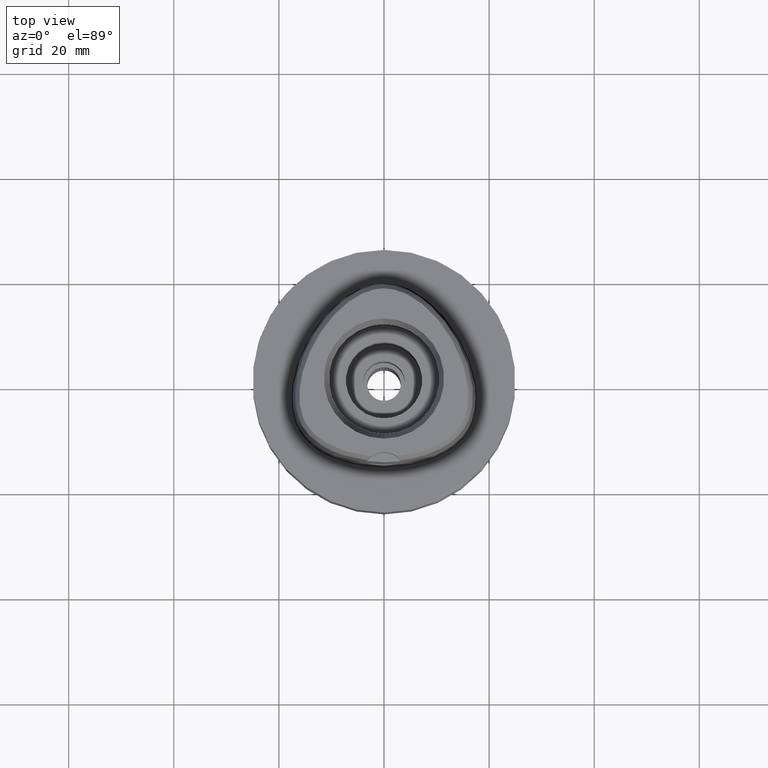
[diagram: clean part render]
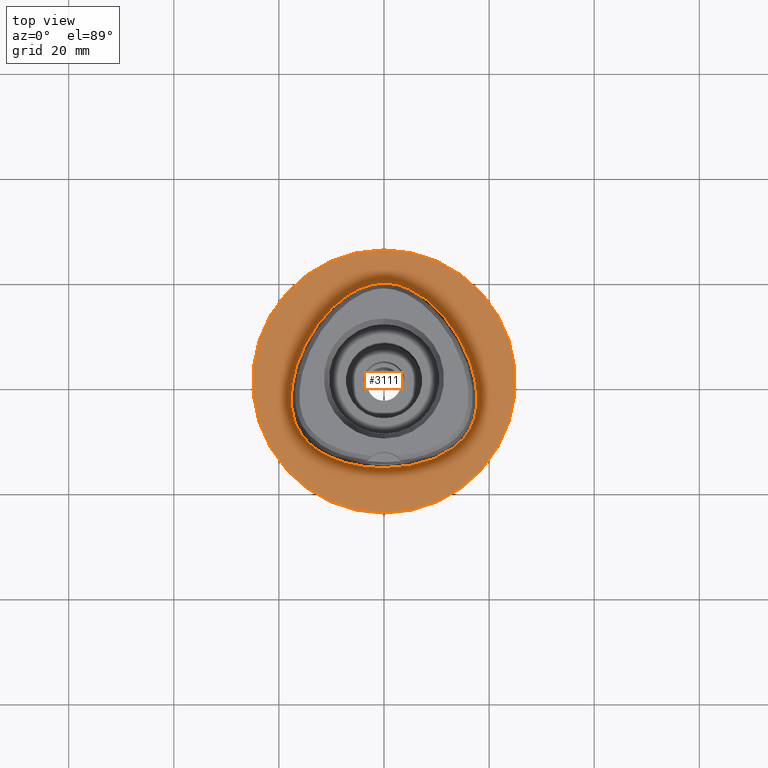
[diagram: same view with one face highlighted and labeled with its STEP entity id]
A machine part, top view. The second image highlights one B-rep face of the part: STEP entity #3111.
In plain terms, the highlighted planar face has unit normal (0, 0, -1).
Its self-contained STEP definition (entity closure, byte-faithful):
#27 = EDGE_LOOP ( 'NONE', ( #3711, #3837 ) ) ;
#122 = CARTESIAN_POINT ( 'NONE',  ( -0.6801907860977778331, 18.69500000334635459, -1.336398456090390208E-07 ) ) ;
#141 = CARTESIAN_POINT ( 'NONE',  ( -14.78833380642927153, -11.28232910386882892, -1.336398456090390208E-07 ) ) ;
#161 = CARTESIAN_POINT ( 'NONE',  ( 17.71143734563062111, -3.269218750065373769, 3.981804917523815851E-07 ) ) ;
#183 = CARTESIAN_POINT ( 'NONE',  ( 15.64884223449525535, -10.21298827538497278, 3.981804917523815851E-07 ) ) ;
#211 = CARTESIAN_POINT ( 'NONE',  ( 0.0000000000000000000, 1.224646799146999965E-14, 0.0000000000000000000 ) ) ;
#293 = PLANE ( 'NONE',  #3298 ) ;
#340 = CARTESIAN_POINT ( 'NONE',  ( 8.523975067027999126E-11, 18.69499999997999851, 1.833718362338999623E-13 ) ) ;
#370 = DIRECTION ( 'NONE',  ( 0.0000000000000000000, -1.000000000000000000, 0.0000000000000000000 ) ) ;
#432 = EDGE_CURVE ( 'NONE', #1389, #1732, #936, .T. ) ;
#449 = VERTEX_POINT ( 'NONE', #690 ) ;
#456 = CARTESIAN_POINT ( 'NONE',  ( -7.967839666306358204, 15.83070312764547971, -1.336398456090390208E-07 ) ) ;
#490 = CARTESIAN_POINT ( 'NONE',  ( -14.38008119980376520, 8.302343751678183281, -1.336398456090390208E-07 ) ) ;
#539 = CARTESIAN_POINT ( 'NONE',  ( 16.66912841229285291, -8.445800777196890152, 3.981804917523815851E-07 ) ) ;
#558 = CARTESIAN_POINT ( 'NONE',  ( 4.728927202536815422, 17.73480467839183561, 3.981804917523815851E-07 ) ) ;
#583 = CARTESIAN_POINT ( 'NONE',  ( 2.040572355618211819, 18.55015624020600740, 3.981804917523815851E-07 ) ) ;
#629 = VERTEX_POINT ( 'NONE', #1084 ) ;
#639 = CARTESIAN_POINT ( 'NONE',  ( 11.68694516090866919, -13.70394530381528320, 3.981804917523815851E-07 ) ) ;
#643 = EDGE_CURVE ( 'NONE', #449, #629, #3704, .T. ) ;
#690 = CARTESIAN_POINT ( 'NONE',  ( 0.0000000000000000000, -25.00000000000000000, 0.0000000000000000000 ) ) ;
#805 = CARTESIAN_POINT ( 'NONE',  ( 8.523975067027999126E-11, 18.69499999997999851, 1.833718362338999623E-13 ) ) ;
#819 = CARTESIAN_POINT ( 'NONE',  ( -1.683697722726802404, -16.45500000333722213, -1.336398456090390208E-07 ) ) ;
#885 = CARTESIAN_POINT ( 'NONE',  ( -11.68694516749439316, -13.70394531541557370, -1.336398456090390208E-07 ) ) ;
#915 = CARTESIAN_POINT ( 'NONE',  ( -5.051093168165269987, -16.15562500330075935, -1.336398456090390208E-07 ) ) ;
#934 = CARTESIAN_POINT ( 'NONE',  ( 11.46563507258255044, 12.45218749354692633, 3.981804917523815851E-07 ) ) ;
#936 = B_SPLINE_CURVE_WITH_KNOTS ( 'NONE', 3,
 ( #4007, #1384, #4063, #1311, #639, #3178, #2449, #183, #3962, #539, #2064, #3582, #161, #1693, #3201, #4725, #934, #2469, #558, #583, #1820, #340 ),
 .UNSPECIFIED., .F., .F.,
 ( 4, 1, 1, 1, 1, 1, 1, 1, 1, 1, 1, 1, 1, 1, 1, 1, 1, 1, 1, 4 ),
 ( 0.0000000000000000000, 0.08333333333359001227, 0.1666666666668000230, 0.2083333333334000115, 0.2500000000000000000, 0.2916666666666999919, 0.3124999999998999689, 0.3333333333332000326, 0.3541666666666000163, 0.3749999999997999933, 0.4166666666665000407, 0.4583333333330000259, 0.4999999999996999622, 0.5833333333328000192, 0.6666666666660999718, 0.7499999999993000044, 0.8333333333325000369, 0.9166666666657999896, 0.9583333333322999747, 1.000000000000000000 ),
 .UNSPECIFIED. ) ;
#975 = B_SPLINE_CURVE_WITH_KNOTS ( 'NONE', 3,
 ( #2067, #122, #3093, #2045, #456, #1624, #490, #2351, #3561, #3114, #1975, #1648, #2013, #3156, #4618, #141, #4682, #885, #1195, #915, #819, #3868 ),
 .UNSPECIFIED., .F., .F.,
 ( 4, 1, 1, 1, 1, 1, 1, 1, 1, 1, 1, 1, 1, 1, 1, 1, 1, 1, 1, 4 ),
 ( 0.0000000000000000000, 0.04166666666833999944, 0.08333333333493000983, 0.1666666666682000142, 0.2500000000013000157, 0.3333333333344999927, 0.4166666666677000253, 0.5000000000008999468, 0.5416666666675000741, 0.5833333333340999793, 0.6250000000006999956, 0.6458333333340000593, 0.6666666666673000119, 0.6875000000005999645, 0.7083333333339000282, 0.7500000000005000445, 0.7916666666671000607, 0.8333333333336999660, 0.9166666666668999985, 1.000000000000000000 ),
 .UNSPECIFIED. ) ;
#1055 = DIRECTION ( 'NONE',  ( 0.0000000000000000000, 0.0000000000000000000, -1.000000000000000000 ) ) ;
#1084 = CARTESIAN_POINT ( 'NONE',  ( 0.0000000000000000000, 25.00000000000000000, 0.0000000000000000000 ) ) ;
#1195 = CARTESIAN_POINT ( 'NONE',  ( -8.946741557331108652, -15.03902344066200669, -1.336398456090390208E-07 ) ) ;
#1311 = CARTESIAN_POINT ( 'NONE',  ( 8.946741552770829387, -15.03902342809545800, 3.981804917523815851E-07 ) ) ;
#1315 = AXIS2_PLACEMENT_3D ( 'NONE', #3566, #2399, #3913 ) ;
#1384 = CARTESIAN_POINT ( 'NONE',  ( 1.683697721926604052, -16.45499999004340452, 3.981804917523815851E-07 ) ) ;
#1389 = VERTEX_POINT ( 'NONE', #3100 ) ;
#1624 = CARTESIAN_POINT ( 'NONE',  ( -11.46563508279733767, 12.45218750217006587, -1.336398456090390208E-07 ) ) ;
#1648 = CARTESIAN_POINT ( 'NONE',  ( -17.16495052102467156, -7.165908204078704102, -1.336398456090390208E-07 ) ) ;
#1693 = CARTESIAN_POINT ( 'NONE',  ( 17.49754711321956790, -0.2285937517476206715, 3.981804917523815851E-07 ) ) ;
#1732 = VERTEX_POINT ( 'NONE', #805 ) ;
#1808 = EDGE_CURVE ( 'NONE', #629, #449, #3713, .T. ) ;
#1820 = CARTESIAN_POINT ( 'NONE',  ( 0.6801907851734999566, 18.69499999004633750, 3.981804917523815851E-07 ) ) ;
#1975 = CARTESIAN_POINT ( 'NONE',  ( -17.56373943265338156, -5.455996094224970783, -1.336398456090390208E-07 ) ) ;
#2013 = CARTESIAN_POINT ( 'NONE',  ( -16.66912842445281839, -8.445800782610145774, -1.336398456090390208E-07 ) ) ;
#2045 = CARTESIAN_POINT ( 'NONE',  ( -4.728927208252295955, 17.73480469054993591, -1.336398456090390208E-07 ) ) ;
#2064 = CARTESIAN_POINT ( 'NONE',  ( 17.16495050822952351, -7.165908200282554930, 3.981804917523815851E-07 ) ) ;
#2067 = CARTESIAN_POINT ( 'NONE',  ( 8.523975067027999126E-11, 18.69499999997999851, 1.833718362338999623E-13 ) ) ;
#2115 = DIRECTION ( 'NONE',  ( 0.0000000000000000000, -1.000000000000000000, 0.0000000000000000000 ) ) ;
#2189 = FACE_BOUND ( 'NONE', #27, .T. ) ;
#2351 = CARTESIAN_POINT ( 'NONE',  ( -16.51672825095696240, 3.703437501140944388, -1.336398456090390208E-07 ) ) ;
#2399 = DIRECTION ( 'NONE',  ( 0.0000000000000000000, 0.0000000000000000000, -1.000000000000000000 ) ) ;
#2449 = CARTESIAN_POINT ( 'NONE',  ( 14.78833379674282433, -11.28232909468845158, 3.981804917523815851E-07 ) ) ;
#2469 = CARTESIAN_POINT ( 'NONE',  ( 7.967839658024651328, 15.83070311710251588, 3.981804917523815851E-07 ) ) ;
#2595 = AXIS2_PLACEMENT_3D ( 'NONE', #3783, #2621, #370 ) ;
#2621 = DIRECTION ( 'NONE',  ( 0.0000000000000000000, 0.0000000000000000000, -1.000000000000000000 ) ) ;
#2635 = EDGE_LOOP ( 'NONE', ( #3503, #3192 ) ) ;
#3093 = CARTESIAN_POINT ( 'NONE',  ( -2.040572358354845850, 18.55015625328110573, -1.336398456090390208E-07 ) ) ;
#3100 = CARTESIAN_POINT ( 'NONE',  ( -2.281368041008000195E-11, -16.45500000000000185, 1.845560741268999878E-13 ) ) ;
#3111 = ADVANCED_FACE ( 'NONE', ( #4083, #2189 ), #293, .F. ) ;
#3114 = CARTESIAN_POINT ( 'NONE',  ( -17.71143735896518123, -3.269218749978656025, -1.336398456090390208E-07 ) ) ;
#3156 = CARTESIAN_POINT ( 'NONE',  ( -16.20602472253965587, -9.356552736047824226, -1.336398456090390208E-07 ) ) ;
#3178 = CARTESIAN_POINT ( 'NONE',  ( 13.50690092862078551, -12.48264647650960590, 3.981804917523815851E-07 ) ) ;
#3192 = ORIENTED_EDGE ( 'NONE', *, *, #643, .F. ) ;
#3201 = CARTESIAN_POINT ( 'NONE',  ( 16.51672823838944026, 3.703437496601292178, 3.981804917523815851E-07 ) ) ;
#3298 = AXIS2_PLACEMENT_3D ( 'NONE', #211, #1055, #2115 ) ;
#3503 = ORIENTED_EDGE ( 'NONE', *, *, #1808, .F. ) ;
#3561 = CARTESIAN_POINT ( 'NONE',  ( -17.49754712638627296, -0.2285937494134242243, -1.336398456090390208E-07 ) ) ;
#3566 = CARTESIAN_POINT ( 'NONE',  ( 0.0000000000000000000, 1.274857317911999787E-14, 0.0000000000000000000 ) ) ;
#3582 = CARTESIAN_POINT ( 'NONE',  ( 17.56373941943986239, -5.455996092333120551, 3.981804917523815851E-07 ) ) ;
#3704 = CIRCLE ( 'NONE', #2595, 25.00000000000000000 ) ;
#3711 = ORIENTED_EDGE ( 'NONE', *, *, #4449, .F. ) ;
#3713 = CIRCLE ( 'NONE', #1315, 25.00000000000000000 ) ;
#3783 = CARTESIAN_POINT ( 'NONE',  ( 0.0000000000000000000, 1.274857317911999787E-14, 0.0000000000000000000 ) ) ;
#3837 = ORIENTED_EDGE ( 'NONE', *, *, #432, .F. ) ;
#3868 = CARTESIAN_POINT ( 'NONE',  ( -2.281368041008000195E-11, -16.45500000000000185, 1.845560741268999878E-13 ) ) ;
#3913 = DIRECTION ( 'NONE',  ( 0.0000000000000000000, 1.000000000000000000, 0.0000000000000000000 ) ) ;
#3962 = CARTESIAN_POINT ( 'NONE',  ( 16.20602471100723108, -9.356552729388871725, 3.981804917523815851E-07 ) ) ;
#4007 = CARTESIAN_POINT ( 'NONE',  ( -2.281368041008000195E-11, -16.45500000000000185, 1.845560741268999878E-13 ) ) ;
#4063 = CARTESIAN_POINT ( 'NONE',  ( 5.051093165809190211, -16.15562499014553666, 3.981804917523815851E-07 ) ) ;
#4083 = FACE_OUTER_BOUND ( 'NONE', #2635, .T. ) ;
#4449 = EDGE_CURVE ( 'NONE', #1732, #1389, #975, .T. ) ;
#4618 = CARTESIAN_POINT ( 'NONE',  ( -15.64884224526622347, -10.21298828321730134, -1.336398456090390208E-07 ) ) ;
#4682 = CARTESIAN_POINT ( 'NONE',  ( -13.50690093687807192, -12.48264648701392154, -1.336398456090390208E-07 ) ) ;
#4725 = CARTESIAN_POINT ( 'NONE',  ( 14.38008118823447035, 8.302343744998230690, 3.981804917523815851E-07 ) ) ;